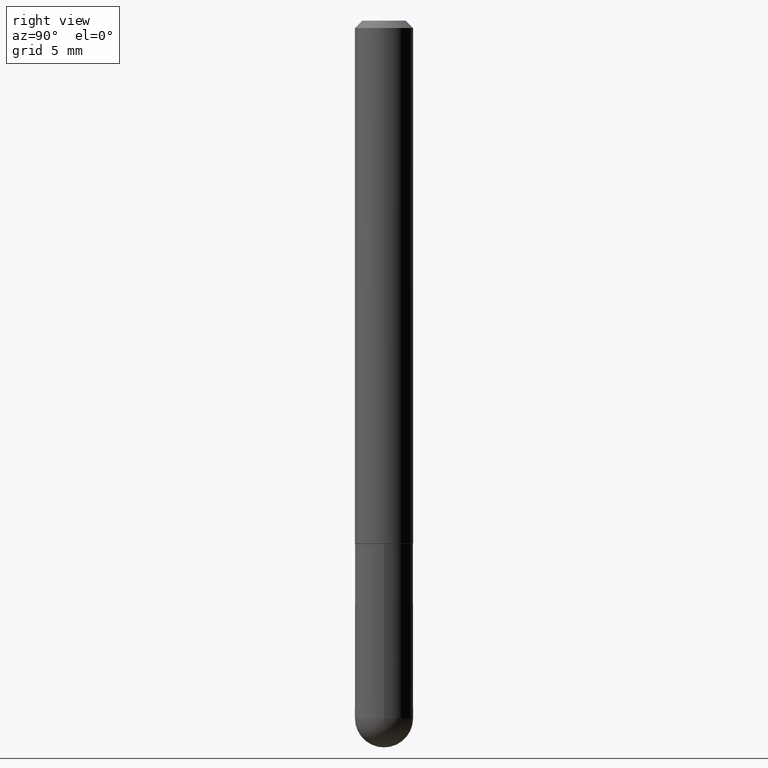
[diagram: clean part render]
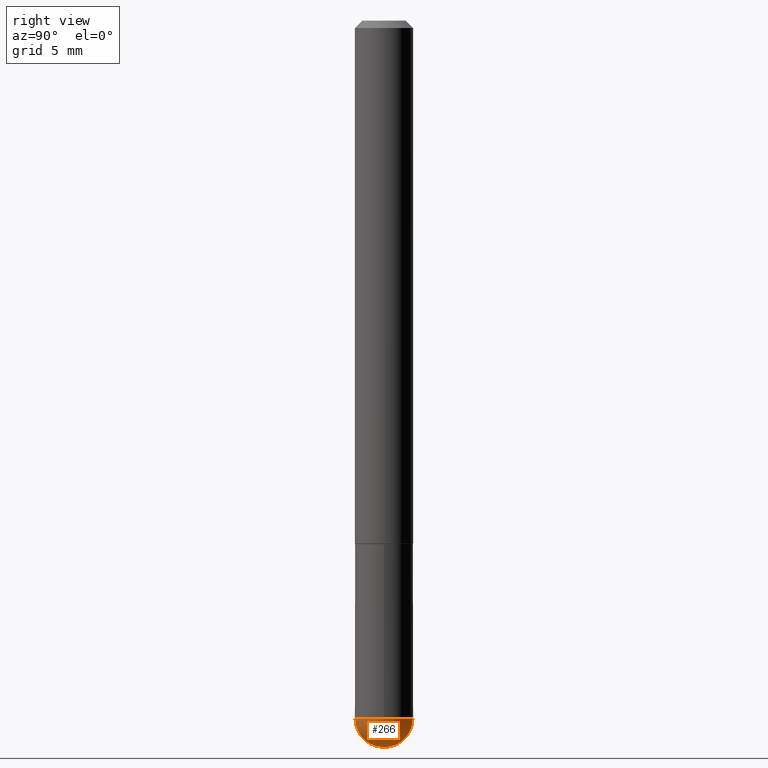
[diagram: same view with one face highlighted and labeled with its STEP entity id]
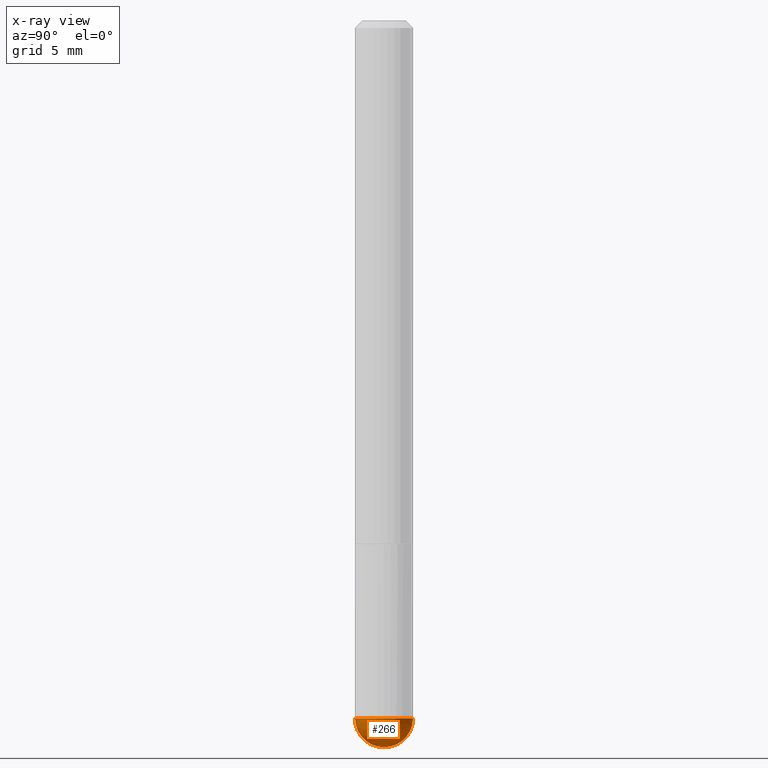
[diagram: x-ray of the same camera — body ghosted, the highlighted face saturated]
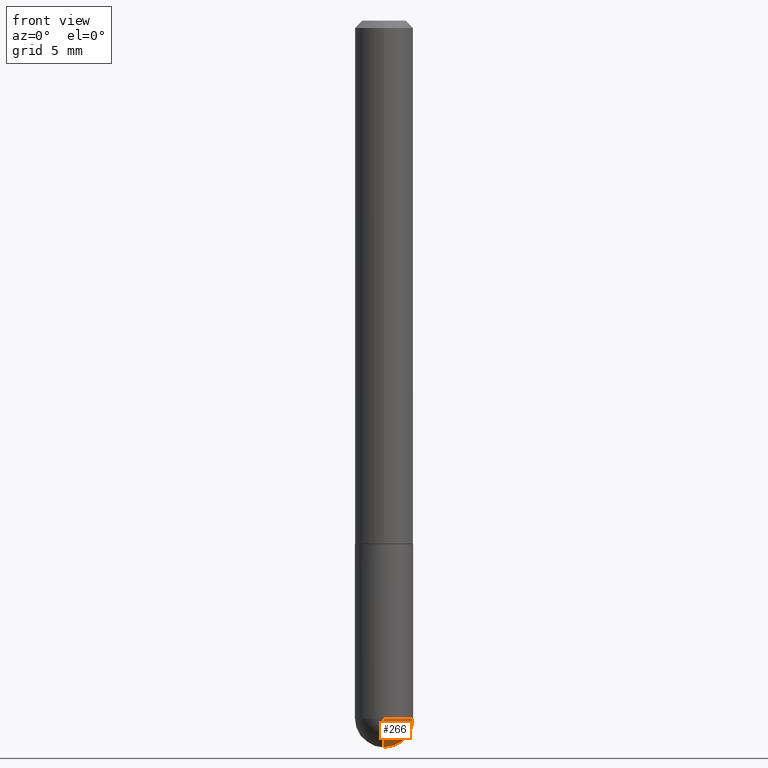
[diagram: same view with one face highlighted and labeled with its STEP entity id]
A machine part, right view. The second image highlights one B-rep face of the part: STEP entity #266.
The next image is the same camera in x-ray: the body ghosted, the highlighted face saturated — about 0% of this face is hidden behind the body in this view.
A second angle (front view) of the same face is appended — the face is thin or edge-on in the first view.
In plain terms, the highlighted spherical surface has radius 2.0003 mm.
Its self-contained STEP definition (entity closure, byte-faithful):
#5 = CARTESIAN_POINT ( 'NONE',  ( 4.621324676488362597E-29, -6.598026860078835823E-15, -1.889750000000000263 ) ) ;
#24 = DIRECTION ( 'NONE',  ( 6.982962677686266711E-15, 1.000000000000000000, 0.000000000000000000 ) ) ;
#46 = DIRECTION ( 'NONE',  ( 6.982962677686265922E-15, 1.000000000000000000, -3.469013325287941460E-15 ) ) ;
#58 = AXIS2_PLACEMENT_3D ( 'NONE', #328, #130, #98 ) ;
#75 = CIRCLE ( 'NONE', #236, 0.07875000000000026423 ) ;
#89 = CARTESIAN_POINT ( 'NONE',  ( -5.595524044110351185E-16, -0.07875000000000693945, -1.889750000000000041 ) ) ;
#94 = EDGE_CURVE ( 'NONE', #306, #312, #322, .T. ) ;
#95 = ORIENTED_EDGE ( 'NONE', *, *, #308, .T. ) ;
#98 = DIRECTION ( 'NONE',  ( -7.105427357601000281E-15, -1.000000000000000000, 0.000000000000000000 ) ) ;
#121 = SPHERICAL_SURFACE ( 'NONE', #122, 0.07875000000000026423 ) ;
#122 = AXIS2_PLACEMENT_3D ( 'NONE', #318, #342, #46 ) ;
#126 = DIRECTION ( 'NONE',  ( -2.445468806185136597E-29, 3.491481338843145583E-15, 1.000000000000000000 ) ) ;
#130 = DIRECTION ( 'NONE',  ( -1.000000000000000000, 7.105427357601001070E-15, -4.926315508542082329E-29 ) ) ;
#138 = AXIS2_PLACEMENT_3D ( 'NONE', #5, #175, #303 ) ;
#141 = VERTEX_POINT ( 'NONE', #373 ) ;
#144 = ORIENTED_EDGE ( 'NONE', *, *, #94, .F. ) ;
#147 = EDGE_CURVE ( 'NONE', #312, #141, #243, .T. ) ;
#175 = DIRECTION ( 'NONE',  ( -2.445468806185136597E-29, 3.491481338843145583E-15, 1.000000000000000000 ) ) ;
#180 = AXIS2_PLACEMENT_3D ( 'NONE', #313, #126, #286 ) ;
#219 = FACE_OUTER_BOUND ( 'NONE', #237, .T. ) ;
#227 = VERTEX_POINT ( 'NONE', #260 ) ;
#236 = AXIS2_PLACEMENT_3D ( 'NONE', #325, #404, #24 ) ;
#237 = EDGE_LOOP ( 'NONE', ( #263, #95, #332, #144 ) ) ;
#243 = CIRCLE ( 'NONE', #180, 0.07874999999999997280 ) ;
#260 = CARTESIAN_POINT ( 'NONE',  ( 4.486152784325199885E-29, -7.342341336881140459E-15, -1.968500000000000361 ) ) ;
#263 = ORIENTED_EDGE ( 'NONE', *, *, #399, .F. ) ;
#266 = ADVANCED_FACE ( 'NONE', ( #219 ), #121, .T. ) ;
#276 = CIRCLE ( 'NONE', #58, 0.07875000000000026423 ) ;
#286 = DIRECTION ( 'NONE',  ( 1.000000000000000000, -6.982962677686264344E-15, 0.000000000000000000 ) ) ;
#303 = DIRECTION ( 'NONE',  ( 1.000000000000000000, -6.982962677686264344E-15, 0.000000000000000000 ) ) ;
#306 = VERTEX_POINT ( 'NONE', #89 ) ;
#308 = EDGE_CURVE ( 'NONE', #227, #141, #75, .T. ) ;
#312 = VERTEX_POINT ( 'NONE', #346 ) ;
#313 = CARTESIAN_POINT ( 'NONE',  ( 4.621324676488362597E-29, -6.598026860078835823E-15, -1.889750000000000263 ) ) ;
#318 = CARTESIAN_POINT ( 'NONE',  ( 4.290204898574475789E-29, -7.072209228218884542E-15, -1.889750000000000041 ) ) ;
#322 = CIRCLE ( 'NONE', #138, 0.07874999999999997280 ) ;
#325 = CARTESIAN_POINT ( 'NONE',  ( 4.290204898574475789E-29, -7.072209228218884542E-15, -1.889750000000000041 ) ) ;
#328 = CARTESIAN_POINT ( 'NONE',  ( 4.290204898574475789E-29, -7.072209228218884542E-15, -1.889750000000000041 ) ) ;
#332 = ORIENTED_EDGE ( 'NONE', *, *, #147, .F. ) ;
#342 = DIRECTION ( 'NONE',  ( -1.000000000000000000, 6.982962677686265922E-15, -4.883557194083112340E-29 ) ) ;
#346 = CARTESIAN_POINT ( 'NONE',  ( 0.07874999999999997280, -6.323159991678405690E-15, -1.889750000000000263 ) ) ;
#373 = CARTESIAN_POINT ( 'NONE',  ( 5.499083108678389024E-16, 0.07874999999999328371, -1.889750000000000485 ) ) ;
#399 = EDGE_CURVE ( 'NONE', #227, #306, #276, .T. ) ;
#404 = DIRECTION ( 'NONE',  ( 1.000000000000000000, -6.982962677686265922E-15, 4.883557194083112340E-29 ) ) ;